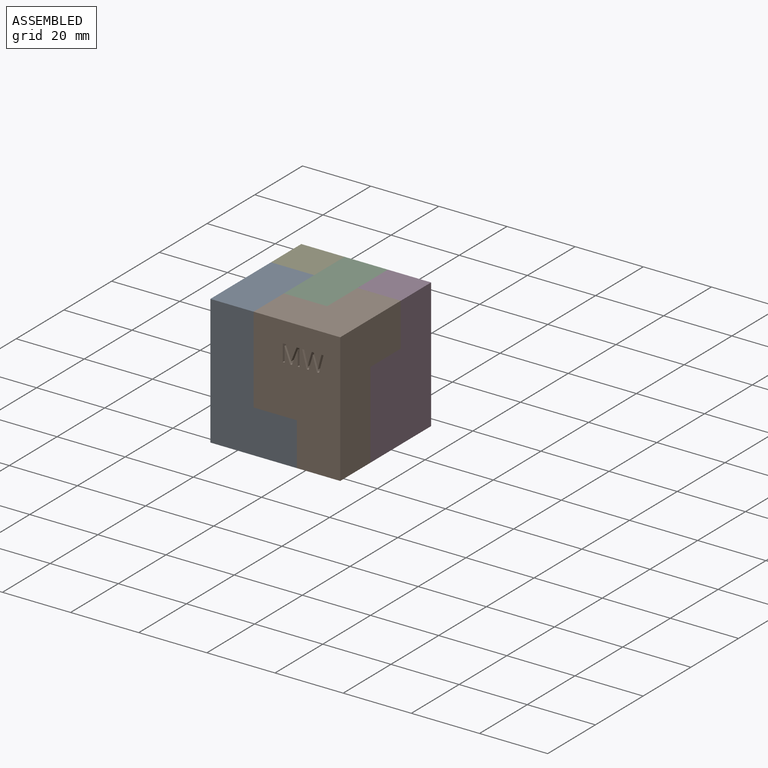
[diagram: assembled view]
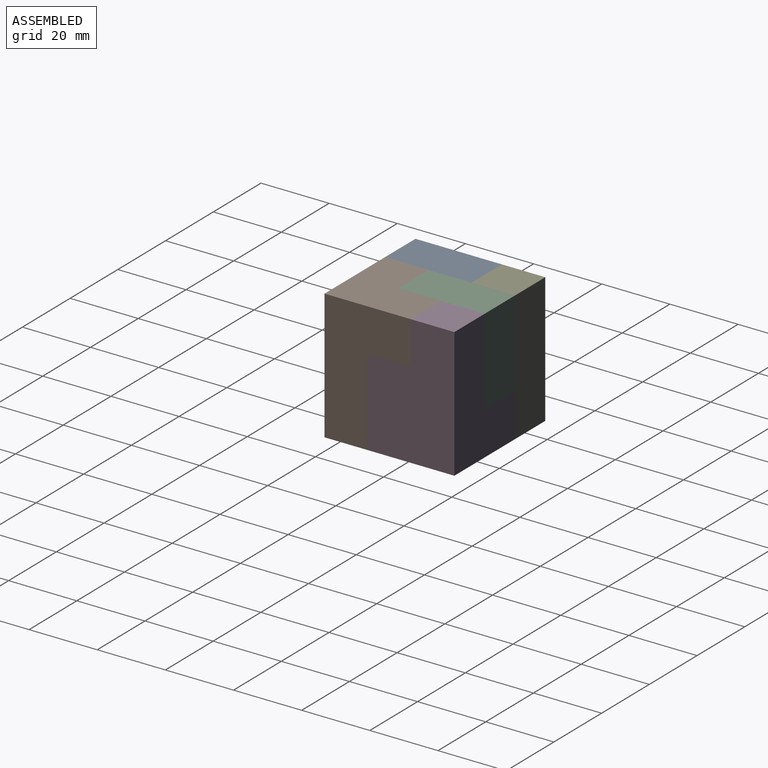
[diagram: assembled view, second angle]
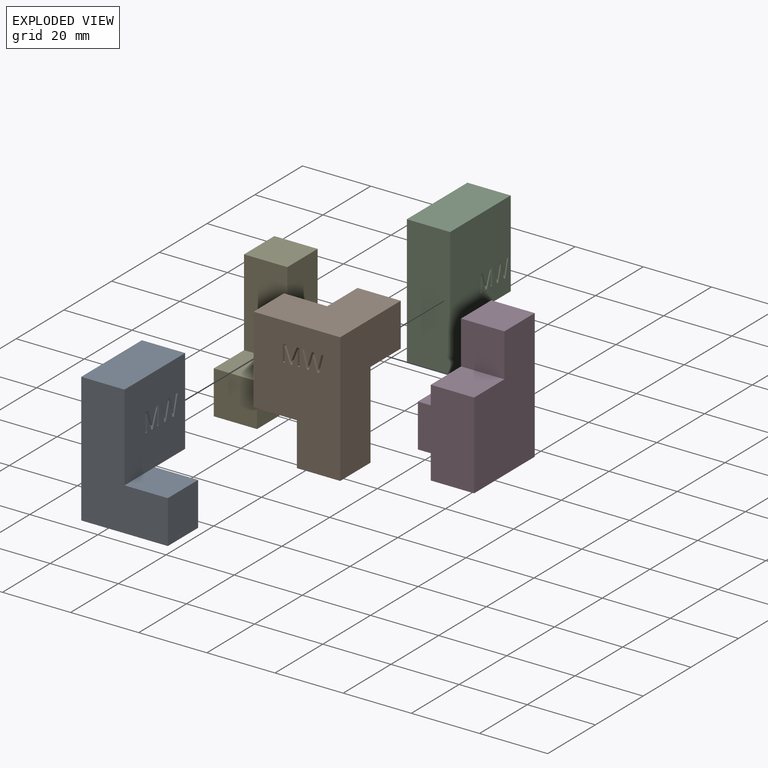
[diagram: exploded view]
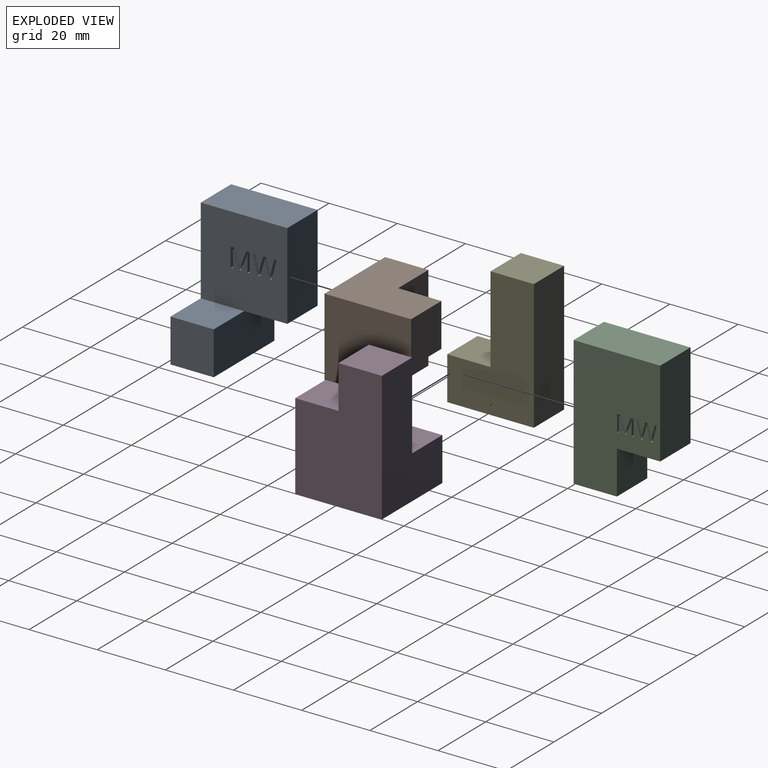
[diagram: exploded view, second angle]
ASSEMBLY  parts=5 mates=8
PART A: 50 faces, bbox 25.4x25.4x38.1 mm
  f0: plane 25.4x25.4mm, normal (0,-1,0), area 618.5mm2, adj f1,f2,f5,f6,f8,f10,f11,f12
  f1: plane 25.4x12.7mm, normal (0,0,1), area 322.6mm2, adj f0,f2,f6,f7
  f2: plane 38.1x25.4mm, normal (-1,0,0), area 645.2mm2, adj f0,f1,f3,f7,f8,f9
  f3: plane 25.4x12.7mm, normal (0,0,-1), area 322.6mm2, adj f2,f4,f7,f9
  f4: plane 25.4x12.7mm, normal (1,0,0), area 322.6mm2, adj f3,f5,f7,f8,f9
  f5: plane 12.7x12.7mm, normal (0,0,-1), area 161.3mm2, adj f0,f4,f6,f7
  f6: plane 25.4x12.7mm, normal (1,0,0), area 322.6mm2, adj f0,f1,f5,f7
  f7: plane 38.1x25.4mm, normal (0,1,0), area 806.5mm2, adj f1,f2,f3,f4,f5,f6
  f8: plane 12.7x12.7mm, normal (0,0,1), area 161.3mm2, adj f0,f2,f4,f9
  f9: plane 12.7x12.7mm, normal (0,-1,0), area 161.3mm2, adj f2,f3,f4,f8
  f10: plane 2.54x0.64mm, normal (0,0,1), area 1.6mm2, adj f0,f11,f29,f30
  f11: plane 5.58x2.54mm, normal (-0.97,0,0.26), area 14.7mm2, adj f0,f10,f12,f30
  f12: plane 2.54x0.69mm, normal (0,0,-1), area 1.7mm2, adj f0,f11,f13,f30
  f13: plane 3.44x2.54mm, normal (0.97,0,-0.25), area 9mm2, adj f0,f12,f14,f30
  f14: extruded ~2.54x1.32mm, area 3.4mm2, adj f0,f13,f15,f30
  f15: extruded ~2.54x1.34mm, area 3.5mm2, adj f0,f14,f16,f30
  f16: plane 3.43x2.54mm, normal (-0.96,0,-0.29), area 9.1mm2, adj f0,f15,f17,f30
  f17: plane 2.54x0.69mm, normal (0,0,-1), area 1.7mm2, adj f0,f16,f18,f30
  f18: plane 3.4x2.54mm, normal (0.96,0,-0.28), area 9mm2, adj f0,f17,f19,f30
  f19: extruded ~2.54x1.37mm, area 3.6mm2, adj f0,f18,f20,f30
  f20: extruded ~2.54x1.31mm, area 3.4mm2, adj f0,f19,f21,f30
  f21: plane 3.45x2.54mm, normal (-0.97,0,-0.25), area 9mm2, adj f0,f20,f22,f30
  f22: plane 2.54x0.69mm, normal (0,0,-1), area 1.7mm2, adj f0,f21,f23,f30
  f23: plane 5.58x2.54mm, normal (0.97,0,0.26), area 14.7mm2, adj f0,f22,f24,f30
  f24: plane 2.54x0.64mm, normal (0,0,1), area 1.6mm2, adj f0,f23,f25,f30
  f25: plane 3.72x2.54mm, normal (-0.96,0,0.28), area 9.8mm2, adj f0,f24,f26,f30
  f26: extruded ~2.54x1.1mm, area 2.9mm2, adj f0,f25,f27,f30
  f27: extruded ~2.54x0.45mm, area 1.2mm2, adj f0,f26,f28,f30
  f28: extruded ~2.54x0.63mm, area 1.7mm2, adj f0,f27,f29,f30
  f29: plane 3.74x2.54mm, normal (0.96,0,0.29), area 9.9mm2, adj f0,f10,f28,f30
  f30: plane 7.03x5.58mm, normal (0,-1,0), area 13.3mm2, adj f10,f11,f12,f13,f14,f15,f16,f17
  f31: plane 4.95x2.54mm, normal (0.93,0,0.36), area 13.5mm2, adj f0,f32,f48,f49
  f32: plane 2.54x0.52mm, normal (0,0,1), area 1.3mm2, adj f0,f31,f33,f49
  f33: plane 4.94x2.54mm, normal (-0.93,0,0.36), area 13.5mm2, adj f0,f32,f34,f49
  f34: plane 2.54x0.03mm, normal (0,0,1), area 0.1mm2, adj f0,f33,f35,f49
  f35: extruded ~2.54x1.34mm, area 3.4mm2, adj f0,f34,f36,f49
  f36: plane 3.6x2.54mm, normal (1,0,0), area 9.1mm2, adj f0,f35,f37,f49
  f37: plane 2.54x0.65mm, normal (0,0,1), area 1.6mm2, adj f0,f36,f38,f49
  f38: plane 5.58x2.54mm, normal (-1,0,0), area 14.2mm2, adj f0,f37,f39,f49
  f39: plane 2.54x0.97mm, normal (0,0,-1), area 2.5mm2, adj f0,f38,f40,f49
  f40: plane 4.61x2.54mm, normal (0.93,0,-0.36), area 12.5mm2, adj f0,f39,f41,f49
  f41: plane 2.54x0.03mm, normal (0,0,-1), area 0.1mm2, adj f0,f40,f42,f49
  f42: plane 4.61x2.54mm, normal (-0.93,0,-0.36), area 12.5mm2, adj f0,f41,f43,f49
  f43: plane 2.54x0.98mm, normal (0,0,-1), area 2.5mm2, adj f0,f42,f44,f49
  f44: plane 5.58x2.54mm, normal (1,0,0), area 14.2mm2, adj f0,f43,f45,f49
  f45: plane 2.54x0.6mm, normal (0,0,1), area 1.5mm2, adj f0,f44,f46,f49
  f46: plane 3.55x2.54mm, normal (-1,0,0), area 9mm2, adj f0,f45,f47,f49
  f47: extruded ~2.54x1.4mm, area 3.6mm2, adj f0,f46,f48,f49
  f48: plane 2.54x0.03mm, normal (0,0,1), area 0.1mm2, adj f0,f31,f47,f49
  f49: plane 5.58x5.53mm, normal (0,-1,0), area 13.3mm2, adj f31,f32,f33,f34,f35,f36,f37,f38
PART B: 51 faces, bbox 25.4x25.4x38.1 mm
  f0: plane 38.1x25.4mm, normal (0,-1,0), area 785.3mm2, adj f1,f2,f3,f4,f5,f6,f11,f12
  f1: plane 25.4x25.4mm, normal (0,0,1), area 483.9mm2, adj f0,f2,f6,f7,f9,f10
  f2: plane 25.4x12.7mm, normal (-1,0,0), area 322.6mm2, adj f0,f1,f3,f7
  f3: plane 12.7x12.7mm, normal (0,0,-1), area 161.3mm2, adj f0,f2,f4,f7
  f4: plane 12.7x12.7mm, normal (-1,0,0), area 161.3mm2, adj f0,f3,f5,f7
  f5: plane 12.7x12.7mm, normal (0,0,-1), area 161.3mm2, adj f0,f4,f6,f7
  f6: plane 38.1x25.4mm, normal (1,0,0), area 645.2mm2, adj f0,f1,f5,f7,f8,f10
  f7: plane 38.1x25.4mm, normal (0,1,0), area 645.2mm2, adj f1,f2,f3,f4,f5,f6,f8,f9
  f8: plane 12.7x12.7mm, normal (0,0,-1), area 161.3mm2, adj f6,f7,f9,f10
  f9: plane 12.7x12.7mm, normal (-1,0,0), area 161.3mm2, adj f1,f7,f8,f10
  f10: plane 12.7x12.7mm, normal (0,1,0), area 161.3mm2, adj f1,f6,f8,f9
  f11: plane 2.54x0.57mm, normal (0,0,1), area 1.5mm2, adj f0,f12,f30,f31
  f12: plane 4.97x2.54mm, normal (-0.97,0,0.26), area 13.1mm2, adj f0,f11,f13,f31
  f13: plane 2.54x0.61mm, normal (0,0,-1), area 1.6mm2, adj f0,f12,f14,f31
  f14: plane 3.06x2.54mm, normal (0.97,0,-0.25), area 8mm2, adj f0,f13,f15,f31
  f15: extruded ~2.54x1.18mm, area 3.1mm2, adj f0,f14,f16,f31
  f16: extruded ~2.54x1.19mm, area 3.1mm2, adj f0,f15,f17,f31
  f17: plane 3.05x2.54mm, normal (-0.96,0,-0.29), area 8.1mm2, adj f0,f16,f18,f31
  f18: plane 2.54x0.61mm, normal (0,0,-1), area 1.6mm2, adj f0,f17,f19,f31
  f19: plane 3.02x2.54mm, normal (0.96,0,-0.28), area 8mm2, adj f0,f18,f20,f31
  f20: extruded ~2.54x1.22mm, area 3.2mm2, adj f0,f19,f21,f31
  f21: extruded ~2.54x1.17mm, area 3mm2, adj f0,f20,f22,f31
  f22: plane 3.07x2.54mm, normal (-0.97,0,-0.25), area 8.1mm2, adj f0,f21,f23,f31
  f23: plane 2.54x0.61mm, normal (0,0,-1), area 1.6mm2, adj f0,f22,f24,f31
  f24: plane 4.97x2.54mm, normal (0.97,0,0.26), area 13.1mm2, adj f0,f23,f25,f31
  f25: plane 2.54x0.57mm, normal (0,0,1), area 1.5mm2, adj f0,f24,f26,f31
  f26: plane 3.31x2.54mm, normal (-0.96,0,0.28), area 8.8mm2, adj f0,f25,f27,f31
  f27: extruded ~2.54x0.98mm, area 2.6mm2, adj f0,f26,f28,f31
  f28: extruded ~2.54x0.41mm, area 1.1mm2, adj f0,f27,f29,f31
  f29: extruded ~2.54x0.56mm, area 1.5mm2, adj f0,f28,f30,f31
  f30: plane 3.33x2.54mm, normal (0.96,0,0.29), area 8.8mm2, adj f0,f11,f29,f31
  f31: plane 6.26x4.97mm, normal (0,-1,0), area 10.5mm2, adj f11,f12,f13,f14,f15,f16,f17,f18
  f32: plane 4.41x2.54mm, normal (0.93,0,0.36), area 12mm2, adj f0,f33,f49,f50
  f33: plane 2.54x0.47mm, normal (0,0,1), area 1.2mm2, adj f0,f32,f34,f50
  f34: plane 4.4x2.54mm, normal (-0.93,0,0.36), area 12mm2, adj f0,f33,f35,f50
  f35: plane 2.54x0.03mm, normal (0,0,1), area 0.1mm2, adj f0,f34,f36,f50
  f36: extruded ~2.54x1.2mm, area 3mm2, adj f0,f35,f37,f50
  f37: plane 3.2x2.54mm, normal (1,0,0), area 8.1mm2, adj f0,f36,f38,f50
  f38: plane 2.54x0.58mm, normal (0,0,1), area 1.5mm2, adj f0,f37,f39,f50
  f39: plane 4.97x2.54mm, normal (-1,0,0), area 12.6mm2, adj f0,f38,f40,f50
  f40: plane 2.54x0.86mm, normal (0,0,-1), area 2.2mm2, adj f0,f39,f41,f50
  f41: plane 4.1x2.54mm, normal (0.93,0,-0.36), area 11.2mm2, adj f0,f40,f42,f50
  f42: plane 2.54x0.03mm, normal (0,0,-1), area 0.1mm2, adj f0,f41,f43,f50
  f43: plane 4.1x2.54mm, normal (-0.93,0,-0.36), area 11.2mm2, adj f0,f42,f44,f50
  f44: plane 2.54x0.87mm, normal (0,0,-1), area 2.2mm2, adj f0,f43,f45,f50
  f45: plane 4.97x2.54mm, normal (1,0,0), area 12.6mm2, adj f0,f44,f46,f50
  f46: plane 2.54x0.53mm, normal (0,0,1), area 1.4mm2, adj f0,f45,f47,f50
  f47: plane 3.16x2.54mm, normal (-1,0,0), area 8mm2, adj f0,f46,f48,f50
  f48: extruded ~2.54x1.25mm, area 3.2mm2, adj f0,f47,f49,f50
  f49: plane 2.54x0.03mm, normal (0,0,1), area 0.1mm2, adj f0,f32,f48,f50
  f50: plane 4.97x4.92mm, normal (0,-1,0), area 10.6mm2, adj f32,f33,f34,f35,f36,f37,f38,f39
PART C: 48 faces, bbox 25.4x12.7x38.1 mm
  f0: plane 38.1x25.4mm, normal (0,-1,0), area 786.6mm2, adj f1,f2,f3,f4,f5,f6,f8,f9
  f1: plane 25.4x12.7mm, normal (0,0,1), area 322.6mm2, adj f0,f2,f6,f7
  f2: plane 38.1x12.7mm, normal (-1,0,0), area 483.9mm2, adj f0,f1,f3,f7
  f3: plane 12.7x12.7mm, normal (0,0,-1), area 161.3mm2, adj f0,f2,f4,f7
  f4: plane 12.7x12.7mm, normal (1,0,0), area 161.3mm2, adj f0,f3,f5,f7
  f5: plane 12.7x12.7mm, normal (0,0,-1), area 161.3mm2, adj f0,f4,f6,f7
  f6: plane 25.4x12.7mm, normal (1,0,0), area 322.6mm2, adj f0,f1,f5,f7
  f7: plane 38.1x25.4mm, normal (0,1,0), area 806.5mm2, adj f1,f2,f3,f4,f5,f6
  f8: plane 2.54x0.55mm, normal (0,0,1), area 1.4mm2, adj f0,f9,f27,f28
  f9: plane 4.82x2.54mm, normal (-0.97,0,0.26), area 12.7mm2, adj f0,f8,f10,f28
  f10: plane 2.54x0.59mm, normal (0,0,-1), area 1.5mm2, adj f0,f9,f11,f28
  f11: plane 2.97x2.54mm, normal (0.97,0,-0.25), area 7.8mm2, adj f0,f10,f12,f28
  f12: extruded ~2.54x1.14mm, area 3mm2, adj f0,f11,f13,f28
  f13: extruded ~2.54x1.16mm, area 3mm2, adj f0,f12,f14,f28
  f14: plane 2.96x2.54mm, normal (-0.96,0,-0.29), area 7.9mm2, adj f0,f13,f15,f28
  f15: plane 2.54x0.59mm, normal (0,0,-1), area 1.5mm2, adj f0,f14,f16,f28
  f16: plane 2.93x2.54mm, normal (0.96,0,-0.28), area 7.8mm2, adj f0,f15,f17,f28
  f17: extruded ~2.54x1.18mm, area 3.1mm2, adj f0,f16,f18,f28
  f18: extruded ~2.54x1.13mm, area 2.9mm2, adj f0,f17,f19,f28
  f19: plane 2.98x2.54mm, normal (-0.97,0,-0.25), area 7.8mm2, adj f0,f18,f20,f28
  f20: plane 2.54x0.59mm, normal (0,0,-1), area 1.5mm2, adj f0,f19,f21,f28
  f21: plane 4.82x2.54mm, normal (0.97,0,0.26), area 12.7mm2, adj f0,f20,f22,f28
  f22: plane 2.54x0.55mm, normal (0,0,1), area 1.4mm2, adj f0,f21,f23,f28
  f23: plane 3.21x2.54mm, normal (-0.96,0,0.28), area 8.5mm2, adj f0,f22,f24,f28
  f24: extruded ~2.54x0.95mm, area 2.5mm2, adj f0,f23,f25,f28
  f25: extruded ~2.54x0.39mm, area 1mm2, adj f0,f24,f26,f28
  f26: extruded ~2.54x0.54mm, area 1.4mm2, adj f0,f25,f27,f28
  f27: plane 3.23x2.54mm, normal (0.96,0,0.29), area 8.6mm2, adj f0,f8,f26,f28
  f28: plane 6.07x4.82mm, normal (0,-1,0), area 9.9mm2, adj f8,f9,f10,f11,f12,f13,f14,f15
  f29: plane 4.28x2.54mm, normal (0.93,0,0.36), area 11.6mm2, adj f0,f30,f46,f47
  f30: plane 2.54x0.45mm, normal (0,0,1), area 1.1mm2, adj f0,f29,f31,f47
  f31: plane 4.27x2.54mm, normal (-0.93,0,0.36), area 11.6mm2, adj f0,f30,f32,f47
  f32: plane 2.54x0.03mm, normal (0,0,1), area 0.1mm2, adj f0,f31,f33,f47
  f33: extruded ~2.54x1.16mm, area 3mm2, adj f0,f32,f34,f47
  f34: plane 3.11x2.54mm, normal (1,0,0), area 7.9mm2, adj f0,f33,f35,f47
  f35: plane 2.54x0.56mm, normal (0,0,1), area 1.4mm2, adj f0,f34,f36,f47
  f36: plane 4.82x2.54mm, normal (-1,0,0), area 12.3mm2, adj f0,f35,f37,f47
  f37: plane 2.54x0.84mm, normal (0,0,-1), area 2.1mm2, adj f0,f36,f38,f47
  f38: plane 3.98x2.54mm, normal (0.93,0,-0.36), area 10.8mm2, adj f0,f37,f39,f47
  f39: plane 2.54x0.03mm, normal (0,0,-1), area 0.1mm2, adj f0,f38,f40,f47
  f40: plane 3.98x2.54mm, normal (-0.93,0,-0.36), area 10.8mm2, adj f0,f39,f41,f47
  f41: plane 2.54x0.84mm, normal (0,0,-1), area 2.1mm2, adj f0,f40,f42,f47
  f42: plane 4.82x2.54mm, normal (1,0,0), area 12.3mm2, adj f0,f41,f43,f47
  f43: plane 2.54x0.52mm, normal (0,0,1), area 1.3mm2, adj f0,f42,f44,f47
  f44: plane 3.07x2.54mm, normal (-1,0,0), area 7.8mm2, adj f0,f43,f45,f47
  f45: extruded ~2.54x1.21mm, area 3.1mm2, adj f0,f44,f46,f47
  f46: plane 2.54x0.03mm, normal (0,0,1), area 0.1mm2, adj f0,f29,f45,f47
  f47: plane 4.82x4.78mm, normal (0,-1,0), area 9.9mm2, adj f29,f30,f31,f32,f33,f34,f35,f36
PART D: 51 faces, bbox 25.4x25.4x38.1 mm
  f0: plane 38.1x25.4mm, normal (0,-1,0), area 621.8mm2, adj f1,f2,f4,f5,f6,f7,f9,f10
  f1: plane 12.7x12.7mm, normal (1,0,0), area 161.3mm2, adj f0,f6,f8,f10
  f2: plane 12.7x12.7mm, normal (1,0,0), area 161.3mm2, adj f0,f3,f5,f9
  f3: plane 38.1x25.4mm, normal (0,1,0), area 806.4mm2, adj f2,f4,f5,f6,f7,f9
  f4: plane 38.1x25.4mm, normal (-1,0,0), area 645.2mm2, adj f0,f3,f5,f6,f8,f10
  f5: plane 12.7x12.7mm, normal (0,0,1), area 161.3mm2, adj f0,f2,f3,f4
  f6: plane 25.4x25.4mm, normal (0,0,-1), area 483.9mm2, adj f0,f1,f3,f4,f7,f8
  f7: plane 25.4x12.7mm, normal (1,0,0), area 322.6mm2, adj f0,f3,f6,f9
  f8: plane 12.7x12.7mm, normal (0,-1,0), area 161.3mm2, adj f1,f4,f6,f10
  f9: plane 12.7x12.7mm, normal (0,0,1), area 161.3mm2, adj f0,f2,f3,f7
  f10: plane 12.7x12.7mm, normal (0,0,1), area 161.3mm2, adj f0,f1,f4,f8
  f11: plane 2.54x0.6mm, normal (0,0,1), area 1.5mm2, adj f0,f12,f30,f31
  f12: plane 5.23x2.54mm, normal (-0.97,0,0.26), area 13.7mm2, adj f0,f11,f13,f31
  f13: plane 2.54x0.64mm, normal (0,0,-1), area 1.6mm2, adj f0,f12,f14,f31
  f14: plane 3.22x2.54mm, normal (0.97,0,-0.25), area 8.4mm2, adj f0,f13,f15,f31
  f15: extruded ~2.54x1.24mm, area 3.2mm2, adj f0,f14,f16,f31
  f16: extruded ~2.54x1.25mm, area 3.3mm2, adj f0,f15,f17,f31
  f17: plane 3.21x2.54mm, normal (-0.96,0,-0.29), area 8.5mm2, adj f0,f16,f18,f31
  f18: plane 2.54x0.64mm, normal (0,0,-1), area 1.6mm2, adj f0,f17,f19,f31
  f19: plane 3.18x2.54mm, normal (0.96,0,-0.28), area 8.4mm2, adj f0,f18,f20,f31
  f20: extruded ~2.54x1.28mm, area 3.3mm2, adj f0,f19,f21,f31
  f21: extruded ~2.54x1.23mm, area 3.2mm2, adj f0,f20,f22,f31
  f22: plane 3.23x2.54mm, normal (-0.97,0,-0.25), area 8.5mm2, adj f0,f21,f23,f31
  f23: plane 2.54x0.64mm, normal (0,0,-1), area 1.6mm2, adj f0,f22,f24,f31
  f24: plane 5.23x2.54mm, normal (0.97,0,0.26), area 13.7mm2, adj f0,f23,f25,f31
  f25: plane 2.54x0.6mm, normal (0,0,1), area 1.5mm2, adj f0,f24,f26,f31
  f26: plane 3.48x2.54mm, normal (-0.96,0,0.28), area 9.2mm2, adj f0,f25,f27,f31
  f27: extruded ~2.54x1.03mm, area 2.7mm2, adj f0,f26,f28,f31
  f28: extruded ~2.54x0.43mm, area 1.1mm2, adj f0,f27,f29,f31
  f29: extruded ~2.54x0.59mm, area 1.6mm2, adj f0,f28,f30,f31
  f30: plane 3.5x2.54mm, normal (0.96,0,0.29), area 9.3mm2, adj f0,f11,f29,f31
  f31: plane 6.58x5.23mm, normal (0,-1,0), area 11.7mm2, adj f11,f12,f13,f14,f15,f16,f17,f18
  f32: plane 4.63x2.54mm, normal (0.93,0,0.36), area 12.6mm2, adj f0,f33,f49,f50
  f33: plane 2.54x0.49mm, normal (0,0,1), area 1.2mm2, adj f0,f32,f34,f50
  f34: plane 4.63x2.54mm, normal (-0.93,0,0.36), area 12.6mm2, adj f0,f33,f35,f50
  f35: plane 2.54x0.03mm, normal (0,0,1), area 0.1mm2, adj f0,f34,f36,f50
  f36: extruded ~2.54x1.26mm, area 3.2mm2, adj f0,f35,f37,f50
  f37: plane 3.37x2.54mm, normal (1,0,0), area 8.6mm2, adj f0,f36,f38,f50
  f38: plane 2.54x0.61mm, normal (0,0,1), area 1.5mm2, adj f0,f37,f39,f50
  f39: plane 5.23x2.54mm, normal (-1,0,0), area 13.3mm2, adj f0,f38,f40,f50
  f40: plane 2.54x0.91mm, normal (0,0,-1), area 2.3mm2, adj f0,f39,f41,f50
  f41: plane 4.31x2.54mm, normal (0.93,0,-0.36), area 11.7mm2, adj f0,f40,f42,f50
  f42: plane 2.54x0.03mm, normal (0,0,-1), area 0.1mm2, adj f0,f41,f43,f50
  f43: plane 4.31x2.54mm, normal (-0.93,0,-0.36), area 11.7mm2, adj f0,f42,f44,f50
  f44: plane 2.54x0.92mm, normal (0,0,-1), area 2.3mm2, adj f0,f43,f45,f50
  f45: plane 5.23x2.54mm, normal (1,0,0), area 13.3mm2, adj f0,f44,f46,f50
  f46: plane 2.54x0.56mm, normal (0,0,1), area 1.4mm2, adj f0,f45,f47,f50
  f47: plane 3.33x2.54mm, normal (-1,0,0), area 8.4mm2, adj f0,f46,f48,f50
  f48: extruded ~2.54x1.31mm, area 3.3mm2, adj f0,f47,f49,f50
  f49: plane 2.54x0.03mm, normal (0,0,1), area 0.1mm2, adj f0,f32,f48,f50
  f50: plane 5.23x5.18mm, normal (0,-1,0), area 11.7mm2, adj f32,f33,f34,f35,f36,f37,f38,f39
PART E: 48 faces, bbox 25.4x12.7x38.1 mm
  f0: plane 25.4x12.7mm, normal (0,0,1), area 308.7mm2, adj f1,f5,f6,f7,f8,f9,f10,f11
  f1: plane 38.1x12.7mm, normal (-1,0,0), area 483.9mm2, adj f0,f2,f6,f7
  f2: plane 12.7x12.7mm, normal (0,0,-1), area 161.3mm2, adj f1,f3,f6,f7
  f3: plane 25.4x12.7mm, normal (1,0,0), area 322.6mm2, adj f2,f4,f6,f7
  f4: plane 12.7x12.7mm, normal (0,0,-1), area 161.3mm2, adj f3,f5,f6,f7
  f5: plane 12.7x12.7mm, normal (1,0,0), area 161.3mm2, adj f0,f4,f6,f7
  f6: plane 38.1x25.4mm, normal (0,-1,0), area 645.2mm2, adj f0,f1,f2,f3,f4,f5
  f7: plane 38.1x25.4mm, normal (0,1,0), area 645.2mm2, adj f0,f1,f2,f3,f4,f5
  f8: plane 1.59x0.46mm, normal (0,1,0), area 0.7mm2, adj f0,f9,f27,f28
  f9: plane 4.03x1.59mm, normal (-0.97,0.26,0), area 6.6mm2, adj f0,f8,f10,f28
  f10: plane 1.59x0.5mm, normal (0,-1,0), area 0.8mm2, adj f0,f9,f11,f28
  f11: plane 2.48x1.59mm, normal (0.97,-0.25,0), area 4.1mm2, adj f0,f10,f12,f28
  f12: extruded ~1.59x0.95mm, area 1.5mm2, adj f0,f11,f13,f28
  f13: extruded ~1.59x0.97mm, area 1.6mm2, adj f0,f12,f14,f28
  f14: plane 2.47x1.59mm, normal (-0.96,-0.29,0), area 4.1mm2, adj f0,f13,f15,f28
  f15: plane 1.59x0.5mm, normal (0,-1,0), area 0.8mm2, adj f0,f14,f16,f28
  f16: plane 2.45x1.59mm, normal (0.96,-0.28,0), area 4.1mm2, adj f0,f15,f17,f28
  f17: extruded ~1.59x0.99mm, area 1.6mm2, adj f0,f16,f18,f28
  f18: extruded ~1.59x0.95mm, area 1.5mm2, adj f0,f17,f19,f28
  f19: plane 2.49x1.59mm, normal (-0.97,-0.25,0), area 4.1mm2, adj f0,f18,f20,f28
  f20: plane 1.59x0.5mm, normal (0,-1,0), area 0.8mm2, adj f0,f19,f21,f28
  f21: plane 4.03x1.59mm, normal (0.97,0.26,0), area 6.6mm2, adj f0,f20,f22,f28
  f22: plane 1.59x0.46mm, normal (0,1,0), area 0.7mm2, adj f0,f21,f23,f28
  f23: plane 2.68x1.59mm, normal (-0.96,0.28,0), area 4.4mm2, adj f0,f22,f24,f28
  f24: extruded ~1.59x0.8mm, area 1.3mm2, adj f0,f23,f25,f28
  f25: extruded ~1.59x0.33mm, area 0.5mm2, adj f0,f24,f26,f28
  f26: extruded ~1.59x0.45mm, area 0.7mm2, adj f0,f25,f27,f28
  f27: plane 2.7x1.59mm, normal (0.96,0.29,0), area 4.5mm2, adj f0,f8,f26,f28
  f28: plane 5.08x4.03mm, normal (0,0,1), area 6.9mm2, adj f8,f9,f10,f11,f12,f13,f14,f15
  f29: plane 3.57x1.59mm, normal (0.93,0.36,0), area 6.1mm2, adj f0,f30,f46,f47
  f30: plane 1.59x0.38mm, normal (0,1,0), area 0.6mm2, adj f0,f29,f31,f47
  f31: plane 3.57x1.59mm, normal (-0.93,0.36,0), area 6.1mm2, adj f0,f30,f32,f47
  f32: plane 1.59x0.02mm, normal (0,1,0), area 0mm2, adj f0,f31,f33,f47
  f33: extruded ~1.59x0.97mm, area 1.5mm2, adj f0,f32,f34,f47
  f34: plane 2.6x1.59mm, normal (1,0,0), area 4.1mm2, adj f0,f33,f35,f47
  f35: plane 1.59x0.47mm, normal (0,1,0), area 0.7mm2, adj f0,f34,f36,f47
  f36: plane 4.03x1.59mm, normal (-1,0,0), area 6.4mm2, adj f0,f35,f37,f47
  f37: plane 1.59x0.7mm, normal (0,-1,0), area 1.1mm2, adj f0,f36,f38,f47
  f38: plane 3.32x1.59mm, normal (0.93,-0.36,0), area 5.7mm2, adj f0,f37,f39,f47
  f39: plane 1.59x0.02mm, normal (0,-1,0), area 0mm2, adj f0,f38,f40,f47
  f40: plane 3.32x1.59mm, normal (-0.93,-0.36,0), area 5.7mm2, adj f0,f39,f41,f47
  f41: plane 1.59x0.71mm, normal (0,-1,0), area 1.1mm2, adj f0,f40,f42,f47
  f42: plane 4.03x1.59mm, normal (1,0,0), area 6.4mm2, adj f0,f41,f43,f47
  f43: plane 1.59x0.43mm, normal (0,1,0), area 0.7mm2, adj f0,f42,f44,f47
  f44: plane 2.56x1.59mm, normal (-1,0,0), area 4.1mm2, adj f0,f43,f45,f47
  f45: extruded ~1.59x1.01mm, area 1.6mm2, adj f0,f44,f46,f47
  f46: plane 1.59x0.02mm, normal (0,1,0), area 0mm2, adj f0,f29,f45,f47
  f47: plane 4.03x3.99mm, normal (0,0,1), area 6.9mm2, adj f29,f30,f31,f32,f33,f34,f35,f36
PLACE A rot(axis=(0,0,1),90deg) t=(-6.68,-8.62,22.21)mm
PLACE B t=(37.47,-30.62,12.78)mm
PLACE C rot(axis=(0,0,1),90deg) t=(6.02,-2.05,21.11)mm
PLACE D rot(axis=(0,0,-1),90deg) t=(18.72,-26.36,12.78)mm
PLACE E rot(axis=(-0.71,0.71,0),180deg) t=(-6.68,-6.68,47.33)mm fixed
MATE planar E.f3 <-> A.f6  axis (0,-1,0) through (-0.33,-17.92,38.18)mm
MATE planar D.f4 <-> C.f6  axis (0,1,0) through (21.9,-5.22,28.66)mm
MATE fastened E.f6 <-> D.f8  axis (1,0,0) through (6.02,-5.22,12.78)mm
MATE planar E.f6 <-> C.f7  axis (1,0,0) through (6.02,-14.74,28.66)mm
MATE planar D.f6 <-> E.f0  axis (0,0,-1) through (6.02,-11.57,12.78)mm
MATE planar B.f2 <-> A.f0  axis (-1,0,0) through (6.02,-36.97,38.18)mm
MATE planar D.f2 <-> B.f10  axis (0,-1,0) through (25.07,-17.92,44.53)mm
MATE planar C.f1 <-> E.f2  axis (0,0,1) through (12.37,-17.92,50.88)mm
